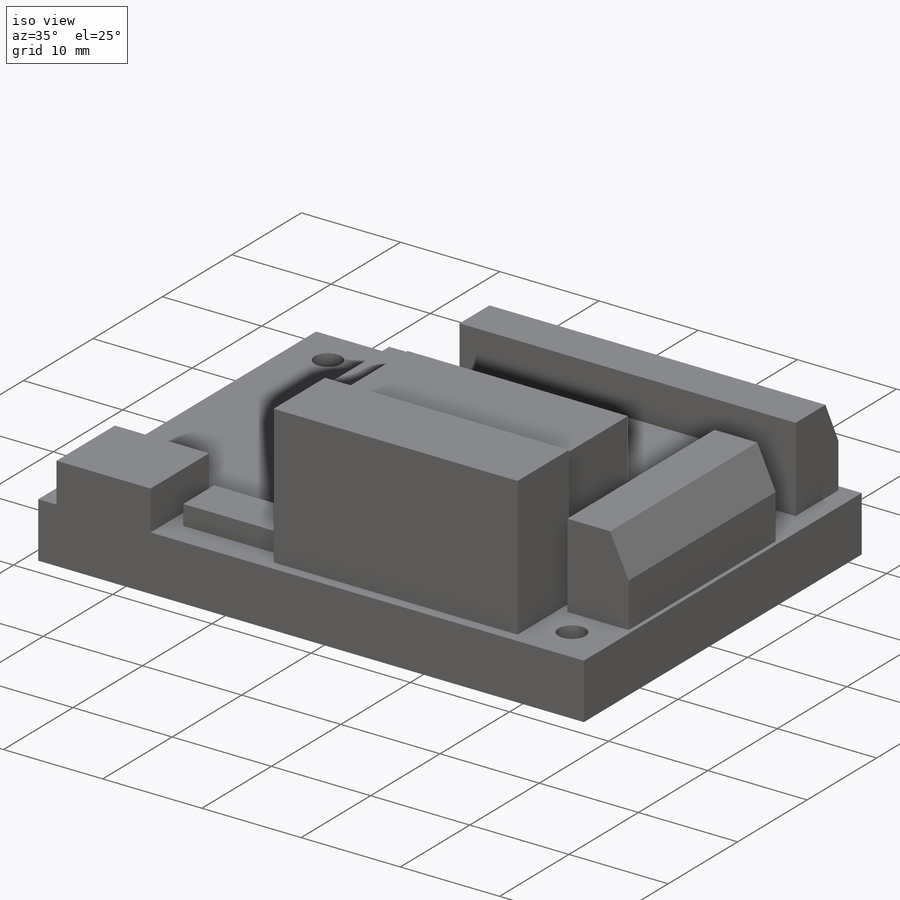
[diagram: iso view]
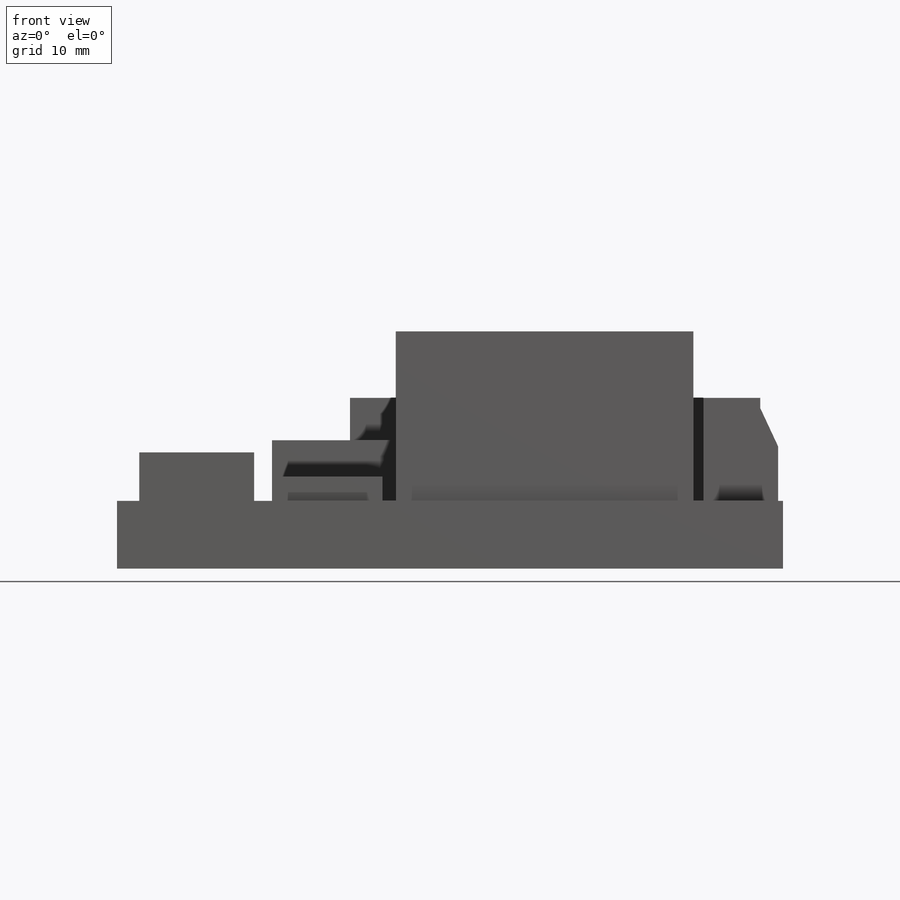
[diagram: front view]
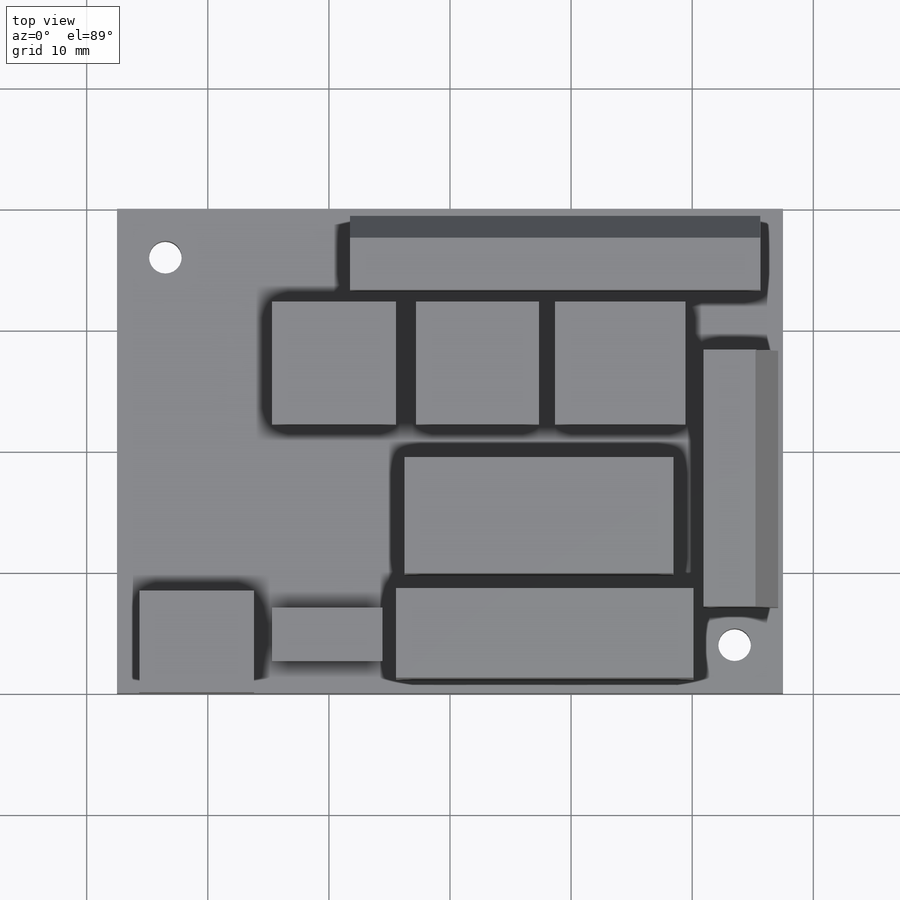
[diagram: top view]
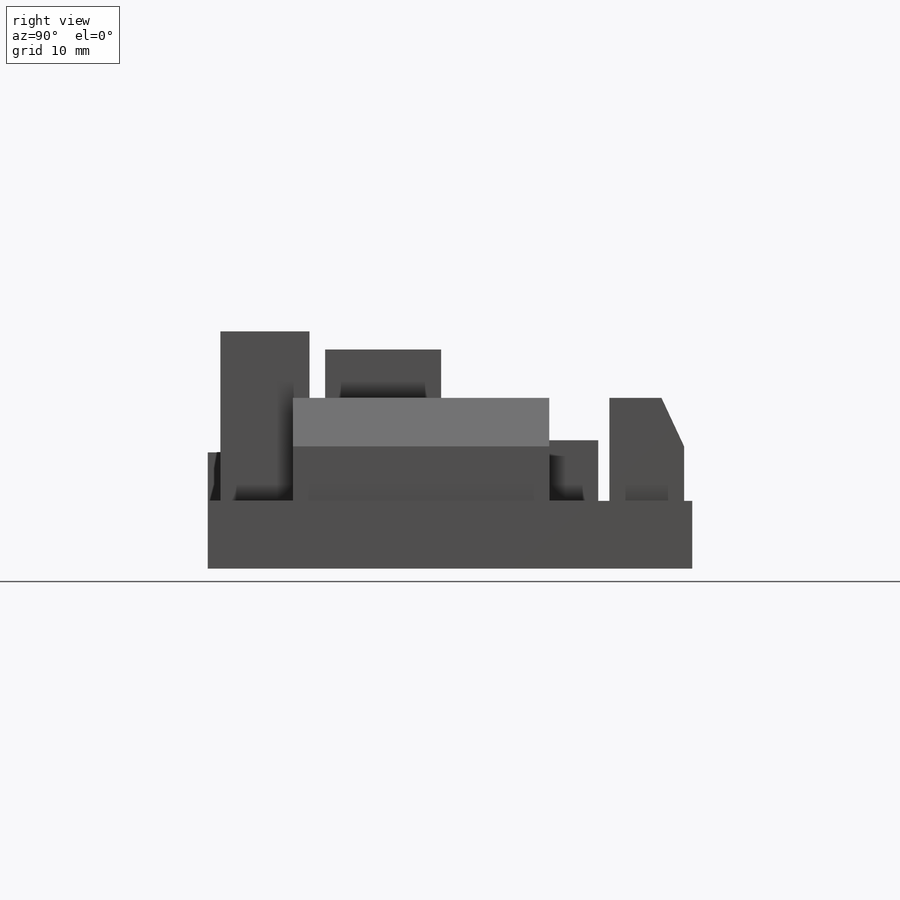
[diagram: right view]
SOLIDWORKS PART (.sldprt)
format: sldprt  version: not decoded by parser v0  size: 358,400 bytes
history: native  units: mm
features: sketch x7, extrude x7, plane x3, material x1, chamfer x1, move_body x1 (+9 scaffold rows collapsed; 1 parser-record rows omitted)
feature tree (30):
  scaffold x9  (default folders/planes/origin — collapsed)
  material  "Material <nicht festgelegt>"
  plane  "Vorne"
  plane  "Oben"
  plane  "Rechts"
  sketch  "Skizze1"  dims[D5=2.7mm D1=27.5mm D2=55.0mm D3=20.0mm D4=40.0mm D6=23.5mm D7=47.0mm D8=16.0mm D9=32.0mm]
  extrude  "Aufsatz-Linear austragen1"  Depth=5.6mm
  sketch  "Skizze2"  dims[D1=~8.55569mm D2=~12.701425mm D3=~13.984779mm D4=~4.781121mm]
  extrude  "Aufsatz-Linear austragen2"  Depth=8.5mm
  extrude  "Aufsatz-Linear austragen3"  [1 undecoded]
  sketch  "Skizze2<3>"  dims[D1=4.0mm]
  extrude  "Aufsatz-Linear austragen4"  [1 undecoded]
  sketch  "Skizze2<4>"  dims[D1=5.0mm]
  extrude  "Aufsatz-Linear austragen5"  [1 undecoded]
  sketch  "Skizze2<5>"  dims[D1=12.5mm]
  extrude  "Aufsatz-Linear austragen6"  [1 undecoded]
  sketch  "Skizze2<6>"  dims[D1=14.0mm]
  extrude  "Aufsatz-Linear austragen7"  [1 undecoded]
  sketch  "Skizze2<7>"  dims[D1=2.0mm]
  chamfer  "Fase1"  Distance=4mm Angle=25deg
  parser-record x1  (decoder bookkeeping rows leaked as tree rows — omitted from the tree; the rows remain in map.json)
  move_body  "Körper-Verschieben/Kopieren1"
decode coverage: 10 of 16 modeling features carry decoded parameters
note: ~ marks probable driven/reference dimensions
note: 5 parameter values undecoded
summary: no parameter record found for 5 features
note: suppression state not decoded; provenance and decode notes live in map.json
